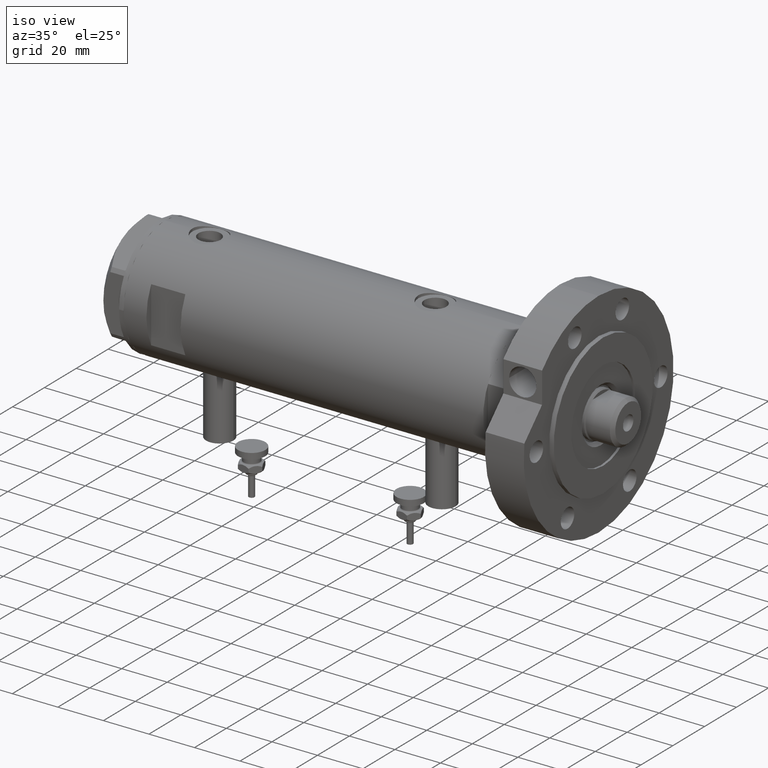
[diagram: clean part render]
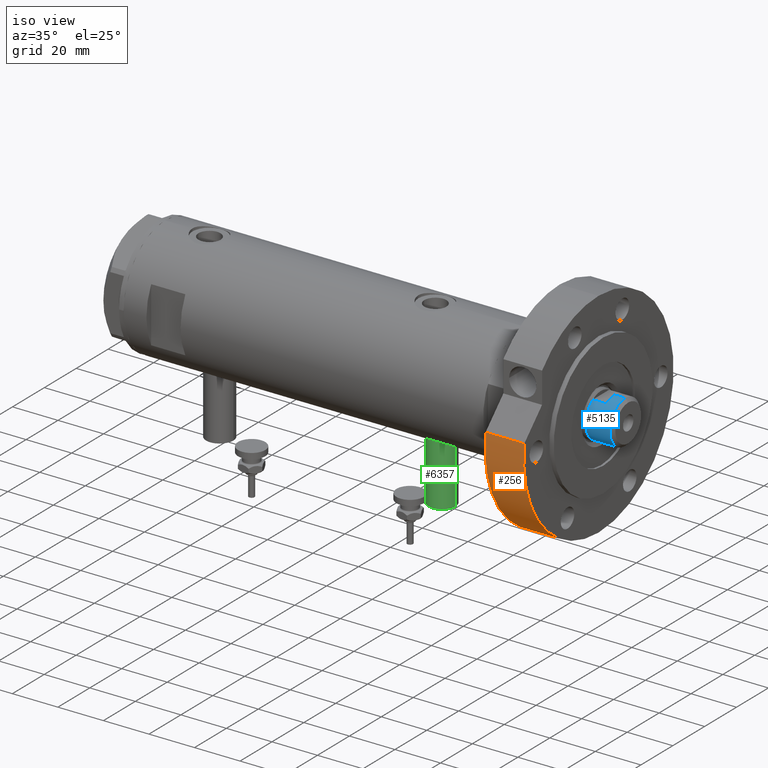
[diagram: same view with three faces highlighted in distinct colors, each labeled with its STEP entity id]
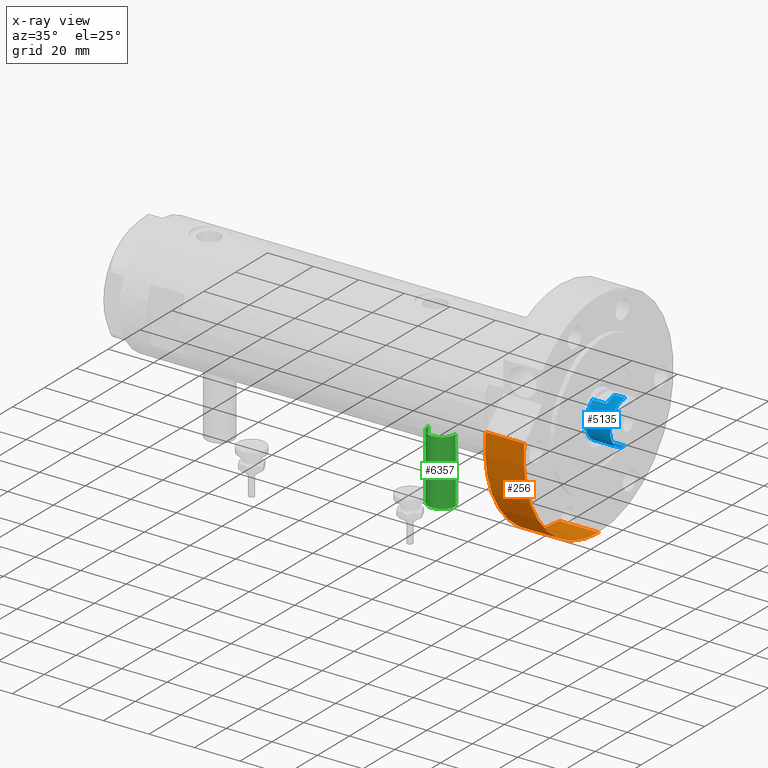
[diagram: x-ray of the same camera — body ghosted, the three highlighted faces saturated]
A machine part, iso view with three faces highlighted in distinct colors.
The next image is the same camera in x-ray (body ghosted, the three faces saturated) — at least one of them is partly hidden behind the body in this view.
Their STEP definitions:

[orange] entity #256 — the highlighted cylindrical surface (partial cylindrical patch) has radius 47 mm, axis along (-1, -0, 0).
#256 = ADVANCED_FACE ( 'NONE', ( #1703 ), #4168, .T. ) ;
#284 = AXIS2_PLACEMENT_3D ( 'NONE', #6613, #5415, #2346 ) ;
#309 = VERTEX_POINT ( 'NONE', #6880 ) ;
#352 = CARTESIAN_POINT ( 'NONE',  ( 0.000000000000000000, 0.000000000000000000, 17.00000000000000000 ) ) ;
#506 = ORIENTED_EDGE ( 'NONE', *, *, #7903, .F. ) ;
#681 = DIRECTION ( 'NONE',  ( -0.000000000000000000, -0.000000000000000000, -1.000000000000000000 ) ) ;
#1049 = VECTOR ( 'NONE', #681, 1000.000000000000000 ) ;
#1412 = CIRCLE ( 'NONE', #5917, 46.99999999999999289 ) ;
#1437 = EDGE_LOOP ( 'NONE', ( #3441, #506, #3675, #5617 ) ) ;
#1703 = FACE_OUTER_BOUND ( 'NONE', #1437, .T. ) ;
#1716 = AXIS2_PLACEMENT_3D ( 'NONE', #352, #5871, #2160 ) ;
#2159 = VERTEX_POINT ( 'NONE', #3307 ) ;
#2160 = DIRECTION ( 'NONE',  ( 1.000000000000000000, 0.000000000000000000, 0.000000000000000000 ) ) ;
#2346 = DIRECTION ( 'NONE',  ( -1.000000000000000000, 0.000000000000000000, 0.000000000000000000 ) ) ;
#2496 = LINE ( 'NONE', #7388, #1049 ) ;
#2536 = DIRECTION ( 'NONE',  ( 1.000000000000000000, 0.000000000000000000, 0.000000000000000000 ) ) ;
#2621 = CIRCLE ( 'NONE', #1716, 46.99999999999999289 ) ;
#3140 = VERTEX_POINT ( 'NONE', #4393 ) ;
#3243 = DIRECTION ( 'NONE',  ( -0.000000000000000000, -0.000000000000000000, 1.000000000000000000 ) ) ;
#3307 = CARTESIAN_POINT ( 'NONE',  ( -46.99999999999999289, 0.000000000000000000, 17.00000000000000000 ) ) ;
#3441 = ORIENTED_EDGE ( 'NONE', *, *, #7821, .F. ) ;
#3617 = VECTOR ( 'NONE', #3243, 1000.000000000000000 ) ;
#3675 = ORIENTED_EDGE ( 'NONE', *, *, #5745, .F. ) ;
#3875 = DIRECTION ( 'NONE',  ( 0.000000000000000000, 0.000000000000000000, 1.000000000000000000 ) ) ;
#4168 = CYLINDRICAL_SURFACE ( 'NONE', #284, 46.99999999999999289 ) ;
#4393 = CARTESIAN_POINT ( 'NONE',  ( -46.99999999999999289, 0.000000000000000000, 0.000000000000000000 ) ) ;
#4446 = LINE ( 'NONE', #6762, #3617 ) ;
#4470 = CARTESIAN_POINT ( 'NONE',  ( 0.000000000000000000, 0.000000000000000000, 0.000000000000000000 ) ) ;
#5094 = EDGE_CURVE ( 'NONE', #7949, #3140, #1412, .T. ) ;
#5415 = DIRECTION ( 'NONE',  ( -0.000000000000000000, -0.000000000000000000, -1.000000000000000000 ) ) ;
#5617 = ORIENTED_EDGE ( 'NONE', *, *, #5094, .T. ) ;
#5745 = EDGE_CURVE ( 'NONE', #7949, #309, #4446, .T. ) ;
#5871 = DIRECTION ( 'NONE',  ( 0.000000000000000000, 0.000000000000000000, 1.000000000000000000 ) ) ;
#5917 = AXIS2_PLACEMENT_3D ( 'NONE', #4470, #3875, #2536 ) ;
#6432 = CARTESIAN_POINT ( 'NONE',  ( 6.092310621118299352, 46.60347359688769586, 0.000000000000000000 ) ) ;
#6613 = CARTESIAN_POINT ( 'NONE',  ( 0.000000000000000000, 0.000000000000000000, 17.00000000000000000 ) ) ;
#6762 = CARTESIAN_POINT ( 'NONE',  ( 6.092310621118299352, 46.60347359688769586, 0.000000000000000000 ) ) ;
#6880 = CARTESIAN_POINT ( 'NONE',  ( 6.092310621118299352, 46.60347359688769586, 17.00000000000000000 ) ) ;
#7388 = CARTESIAN_POINT ( 'NONE',  ( -46.99999999999999289, 0.000000000000000000, 17.00000000000000000 ) ) ;
#7821 = EDGE_CURVE ( 'NONE', #2159, #3140, #2496, .T. ) ;
#7903 = EDGE_CURVE ( 'NONE', #309, #2159, #2621, .T. ) ;
#7949 = VERTEX_POINT ( 'NONE', #6432 ) ;

[blue] entity #5135 — the highlighted cylindrical surface (edge-blend (fillet) strip) has radius 9.5 mm, axis along (-1, -0, 0).
#136 = DIRECTION ( 'NONE',  ( -0.000000000000000000, -0.000000000000000000, -1.000000000000000000 ) ) ;
#195 = ORIENTED_EDGE ( 'NONE', *, *, #1648, .F. ) ;
#519 = EDGE_CURVE ( 'NONE', #7883, #4329, #1818, .T. ) ;
#675 = DIRECTION ( 'NONE',  ( 0.000000000000000000, 0.000000000000000000, 1.000000000000000000 ) ) ;
#856 = LINE ( 'NONE', #3890, #4605 ) ;
#1030 = CIRCLE ( 'NONE', #3491, 9.500000000000001776 ) ;
#1105 = DIRECTION ( 'NONE',  ( 0.000000000000000000, 0.000000000000000000, 1.000000000000000000 ) ) ;
#1140 = CYLINDRICAL_SURFACE ( 'NONE', #3614, 9.500000000000001776 ) ;
#1232 = DIRECTION ( 'NONE',  ( -0.000000000000000000, -0.000000000000000000, -1.000000000000000000 ) ) ;
#1353 = LINE ( 'NONE', #4905, #5449 ) ;
#1469 = ORIENTED_EDGE ( 'NONE', *, *, #2307, .T. ) ;
#1524 = VERTEX_POINT ( 'NONE', #4185 ) ;
#1648 = EDGE_CURVE ( 'NONE', #1524, #5517, #4838, .T. ) ;
#1818 = CIRCLE ( 'NONE', #5043, 9.500000000000001776 ) ;
#1875 = EDGE_CURVE ( 'NONE', #7883, #6015, #2829, .T. ) ;
#2307 = EDGE_CURVE ( 'NONE', #1524, #6015, #5886, .T. ) ;
#2417 = CARTESIAN_POINT ( 'NONE',  ( 9.500000000000000000, 1.163414459189985485E-15, 173.6000000000000227 ) ) ;
#2482 = DIRECTION ( 'NONE',  ( 1.000000000000000000, 0.000000000000000000, 0.000000000000000000 ) ) ;
#2759 = DIRECTION ( 'NONE',  ( 1.000000000000000000, 0.000000000000000000, 0.000000000000000000 ) ) ;
#2771 = VECTOR ( 'NONE', #7125, 1000.000000000000000 ) ;
#2805 = CARTESIAN_POINT ( 'NONE',  ( 7.982950582334834344, -5.150000000000034994, 167.6000000000000227 ) ) ;
#2829 = LINE ( 'NONE', #4678, #2771 ) ;
#2910 = CARTESIAN_POINT ( 'NONE',  ( 0.000000000000000000, 0.000000000000000000, 173.6000000000000227 ) ) ;
#2982 = EDGE_CURVE ( 'NONE', #4329, #4644, #856, .T. ) ;
#3246 = ORIENTED_EDGE ( 'NONE', *, *, #2982, .T. ) ;
#3280 = VERTEX_POINT ( 'NONE', #6271 ) ;
#3470 = DIRECTION ( 'NONE',  ( 1.000000000000000000, 0.000000000000000000, 0.000000000000000000 ) ) ;
#3490 = EDGE_CURVE ( 'NONE', #4644, #7427, #7560, .T. ) ;
#3491 = AXIS2_PLACEMENT_3D ( 'NONE', #6102, #1105, #2482 ) ;
#3614 = AXIS2_PLACEMENT_3D ( 'NONE', #4818, #4299, #7935 ) ;
#3890 = CARTESIAN_POINT ( 'NONE',  ( -9.500000000000001776, 0.000000000000000000, 173.6000000000000227 ) ) ;
#3927 = VECTOR ( 'NONE', #6004, 1000.000000000000000 ) ;
#3979 = AXIS2_PLACEMENT_3D ( 'NONE', #2910, #4825, #3470 ) ;
#4185 = CARTESIAN_POINT ( 'NONE',  ( 7.982950582334832568, -5.149999999999997691, 173.6000000000000227 ) ) ;
#4299 = DIRECTION ( 'NONE',  ( -0.000000000000000000, -0.000000000000000000, -1.000000000000000000 ) ) ;
#4329 = VERTEX_POINT ( 'NONE', #4490 ) ;
#4490 = CARTESIAN_POINT ( 'NONE',  ( -9.500000000000001776, 0.000000000000000000, 178.2000000000000171 ) ) ;
#4540 = ORIENTED_EDGE ( 'NONE', *, *, #3490, .T. ) ;
#4605 = VECTOR ( 'NONE', #136, 1000.000000000000000 ) ;
#4644 = VERTEX_POINT ( 'NONE', #7561 ) ;
#4678 = CARTESIAN_POINT ( 'NONE',  ( 9.500000000000001776, 1.163414459189985682E-15, 173.6000000000000227 ) ) ;
#4706 = ORIENTED_EDGE ( 'NONE', *, *, #519, .T. ) ;
#4818 = CARTESIAN_POINT ( 'NONE',  ( 0.000000000000000000, 0.000000000000000000, 173.6000000000000227 ) ) ;
#4825 = DIRECTION ( 'NONE',  ( 0.000000000000000000, 0.000000000000000000, 1.000000000000000000 ) ) ;
#4838 = LINE ( 'NONE', #7725, #3927 ) ;
#4905 = CARTESIAN_POINT ( 'NONE',  ( -7.982950582334829015, -5.150000000000001243, 173.6000000000000227 ) ) ;
#5043 = AXIS2_PLACEMENT_3D ( 'NONE', #7599, #5799, #2759 ) ;
#5111 = CARTESIAN_POINT ( 'NONE',  ( 9.500000000000001776, 1.163414459189985682E-15, 178.2000000000000171 ) ) ;
#5112 = ORIENTED_EDGE ( 'NONE', *, *, #7758, .T. ) ;
#5135 = ADVANCED_FACE ( 'NONE', ( #6737 ), #1140, .T. ) ;
#5181 = EDGE_CURVE ( 'NONE', #3280, #5517, #1030, .T. ) ;
#5449 = VECTOR ( 'NONE', #1232, 1000.000000000000000 ) ;
#5517 = VERTEX_POINT ( 'NONE', #2805 ) ;
#5598 = ORIENTED_EDGE ( 'NONE', *, *, #1875, .F. ) ;
#5799 = DIRECTION ( 'NONE',  ( 0.000000000000000000, 0.000000000000000000, -1.000000000000000000 ) ) ;
#5886 = CIRCLE ( 'NONE', #7925, 9.500000000000000000 ) ;
#6004 = DIRECTION ( 'NONE',  ( -0.000000000000000000, -0.000000000000000000, -1.000000000000000000 ) ) ;
#6015 = VERTEX_POINT ( 'NONE', #2417 ) ;
#6102 = CARTESIAN_POINT ( 'NONE',  ( 0.000000000000000000, 0.000000000000000000, 167.6000000000000227 ) ) ;
#6158 = CARTESIAN_POINT ( 'NONE',  ( -7.982950582334825462, -5.150000000000003020, 173.6000000000000227 ) ) ;
#6192 = ORIENTED_EDGE ( 'NONE', *, *, #5181, .T. ) ;
#6271 = CARTESIAN_POINT ( 'NONE',  ( -7.982950582334825462, -5.150000000000042988, 167.6000000000000227 ) ) ;
#6703 = CARTESIAN_POINT ( 'NONE',  ( 0.000000000000000000, 0.000000000000000000, 173.6000000000000227 ) ) ;
#6737 = FACE_OUTER_BOUND ( 'NONE', #7902, .T. ) ;
#7125 = DIRECTION ( 'NONE',  ( -0.000000000000000000, -0.000000000000000000, -1.000000000000000000 ) ) ;
#7267 = DIRECTION ( 'NONE',  ( 1.000000000000000000, 0.000000000000000000, 0.000000000000000000 ) ) ;
#7427 = VERTEX_POINT ( 'NONE', #6158 ) ;
#7560 = CIRCLE ( 'NONE', #3979, 9.500000000000000000 ) ;
#7561 = CARTESIAN_POINT ( 'NONE',  ( -9.500000000000000000, 0.000000000000000000, 173.6000000000000227 ) ) ;
#7599 = CARTESIAN_POINT ( 'NONE',  ( 0.000000000000000000, 0.000000000000000000, 178.2000000000000171 ) ) ;
#7725 = CARTESIAN_POINT ( 'NONE',  ( 7.982950582334832568, -5.149999999999997691, 173.6000000000000227 ) ) ;
#7758 = EDGE_CURVE ( 'NONE', #7427, #3280, #1353, .T. ) ;
#7883 = VERTEX_POINT ( 'NONE', #5111 ) ;
#7902 = EDGE_LOOP ( 'NONE', ( #5598, #4706, #3246, #4540, #5112, #6192, #195, #1469 ) ) ;
#7925 = AXIS2_PLACEMENT_3D ( 'NONE', #6703, #675, #7267 ) ;
#7935 = DIRECTION ( 'NONE',  ( -1.000000000000000000, 0.000000000000000000, 0.000000000000000000 ) ) ;

[green] entity #6357 — the highlighted cylindrical surface (edge-blend (fillet) strip) has radius 6 mm, axis along (0, 0, 1).
#272 = CARTESIAN_POINT ( 'NONE',  ( -53.40000000000000568, 7.347880794884122694E-16, -36.64999999999999858 ) ) ;
#296 = CIRCLE ( 'NONE', #5828, 6.000000000000005329 ) ;
#337 = CARTESIAN_POINT ( 'NONE',  ( -53.40000000000000568, 0.000000000000000000, -48.65000000000001279 ) ) ;
#371 = ORIENTED_EDGE ( 'NONE', *, *, #7841, .F. ) ;
#798 = LINE ( 'NONE', #272, #4035 ) ;
#810 = DIRECTION ( 'NONE',  ( 1.000000000000000000, -0.000000000000000000, -0.000000000000000000 ) ) ;
#1293 = EDGE_CURVE ( 'NONE', #6243, #5734, #1624, .T. ) ;
#1436 = AXIS2_PLACEMENT_3D ( 'NONE', #7289, #4246, #5579 ) ;
#1481 = CARTESIAN_POINT ( 'NONE',  ( -53.40000000000000568, 0.000000000000000000, -42.65000000000000568 ) ) ;
#1624 = LINE ( 'NONE', #337, #5952 ) ;
#1638 = ORIENTED_EDGE ( 'NONE', *, *, #1293, .T. ) ;
#1927 = ORIENTED_EDGE ( 'NONE', *, *, #7627, .T. ) ;
#2703 = CARTESIAN_POINT ( 'NONE',  ( -53.40000000000000568, 0.000000000000000000, -48.65000000000001279 ) ) ;
#2811 = EDGE_LOOP ( 'NONE', ( #371, #5950, #1638, #1927 ) ) ;
#2911 = DIRECTION ( 'NONE',  ( 0.000000000000000000, 0.000000000000000000, -1.000000000000000000 ) ) ;
#3179 = VERTEX_POINT ( 'NONE', #3603 ) ;
#3603 = CARTESIAN_POINT ( 'NONE',  ( -53.40000000000000568, 7.347880794884119736E-16, -36.64999999999999858 ) ) ;
#3631 = AXIS2_PLACEMENT_3D ( 'NONE', #1481, #810, #2911 ) ;
#3771 = CIRCLE ( 'NONE', #1436, 6.000000000000005329 ) ;
#4007 = DIRECTION ( 'NONE',  ( 1.000000000000000000, -0.000000000000000000, -0.000000000000000000 ) ) ;
#4035 = VECTOR ( 'NONE', #7664, 1000.000000000000000 ) ;
#4107 = DIRECTION ( 'NONE',  ( 0.000000000000000000, 0.000000000000000000, 1.000000000000000000 ) ) ;
#4160 = CARTESIAN_POINT ( 'NONE',  ( -24.80000000000000426, 7.347880794884119736E-16, -36.64999999999999858 ) ) ;
#4246 = DIRECTION ( 'NONE',  ( -1.000000000000000000, 0.000000000000000000, 0.000000000000000000 ) ) ;
#4970 = VERTEX_POINT ( 'NONE', #4160 ) ;
#5403 = CARTESIAN_POINT ( 'NONE',  ( -24.80000000000000426, 0.000000000000000000, -42.65000000000000568 ) ) ;
#5579 = DIRECTION ( 'NONE',  ( 0.000000000000000000, 0.000000000000000000, 1.000000000000000000 ) ) ;
#5734 = VERTEX_POINT ( 'NONE', #6330 ) ;
#5828 = AXIS2_PLACEMENT_3D ( 'NONE', #5403, #7307, #4107 ) ;
#5950 = ORIENTED_EDGE ( 'NONE', *, *, #6902, .F. ) ;
#5952 = VECTOR ( 'NONE', #4007, 1000.000000000000000 ) ;
#6243 = VERTEX_POINT ( 'NONE', #2703 ) ;
#6330 = CARTESIAN_POINT ( 'NONE',  ( -24.80000000000000426, 0.000000000000000000, -48.65000000000001279 ) ) ;
#6357 = ADVANCED_FACE ( 'NONE', ( #6999 ), #7121, .T. ) ;
#6902 = EDGE_CURVE ( 'NONE', #6243, #3179, #3771, .T. ) ;
#6999 = FACE_OUTER_BOUND ( 'NONE', #2811, .T. ) ;
#7121 = CYLINDRICAL_SURFACE ( 'NONE', #3631, 6.000000000000005329 ) ;
#7289 = CARTESIAN_POINT ( 'NONE',  ( -53.40000000000000568, 0.000000000000000000, -42.65000000000000568 ) ) ;
#7307 = DIRECTION ( 'NONE',  ( -1.000000000000000000, 0.000000000000000000, 0.000000000000000000 ) ) ;
#7627 = EDGE_CURVE ( 'NONE', #5734, #4970, #296, .T. ) ;
#7664 = DIRECTION ( 'NONE',  ( 1.000000000000000000, -0.000000000000000000, -0.000000000000000000 ) ) ;
#7841 = EDGE_CURVE ( 'NONE', #3179, #4970, #798, .T. ) ;